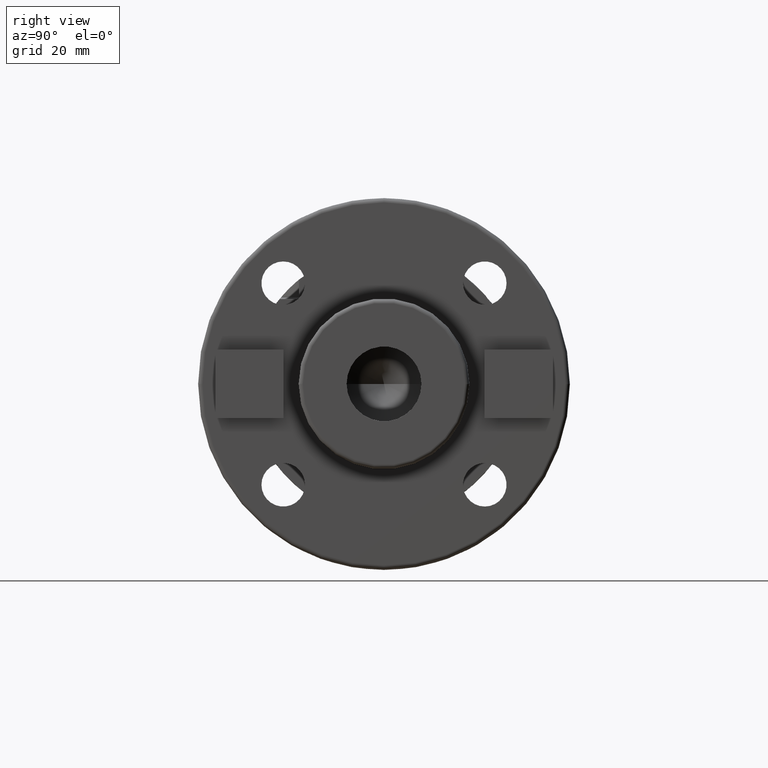
[diagram: clean part render]
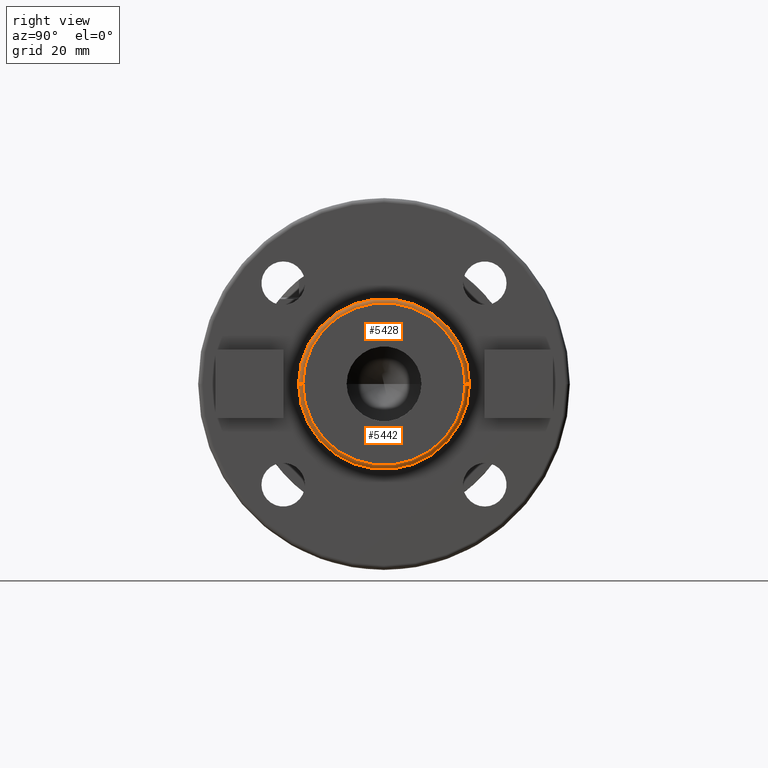
[diagram: same view with one multi-face feature highlighted, each face labeled with its STEP entity id]
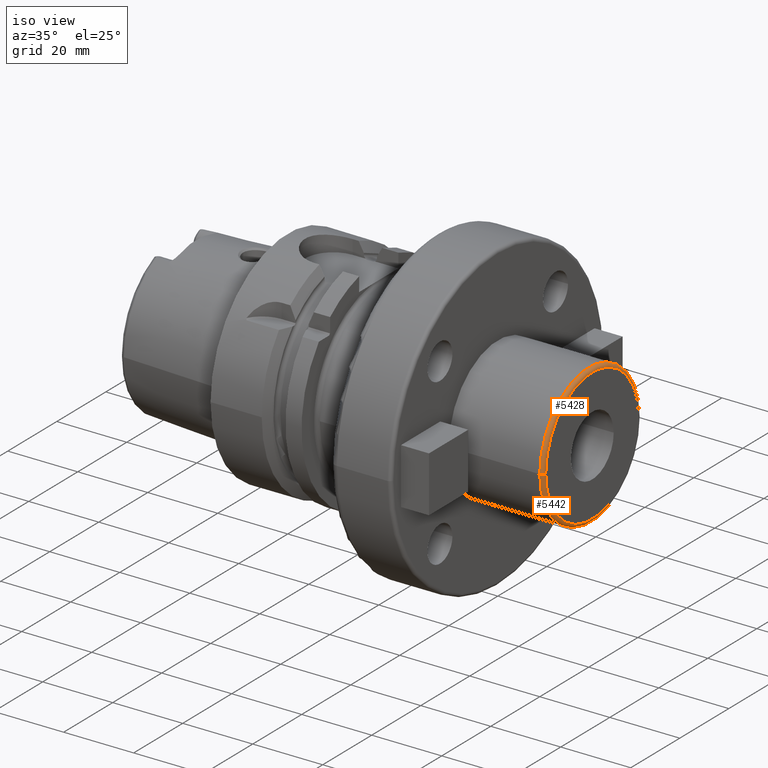
[diagram: same view with one multi-face feature highlighted, each face labeled with its STEP entity id]
A machine part, right view. The highlighted faces form ONE feature: a constant-radius fillet chain: 2 tangent blend faces with common blend radius 1 mm. The faces share edges in the B-rep.
A second angle (iso view) of the same feature is appended — it is thin or edge-on in the first view.
Their STEP definitions:
[1] entity #5428 (Torus):
#1701=CARTESIAN_POINT('',(8.6E1,0.E0,0.E0));
#1702=DIRECTION('',(-1.E0,0.E0,0.E0));
#1703=DIRECTION('',(0.E0,-1.E0,0.E0));
#1704=AXIS2_PLACEMENT_3D('',#1701,#1702,#1703);
#1706=CARTESIAN_POINT('',(8.6E1,-1.9E1,-4.343567172604E-12));
#1707=DIRECTION('',(0.E0,-2.286092322390E-13,1.E0));
#1708=DIRECTION('',(0.E0,-1.E0,-2.286092322390E-13));
#1709=AXIS2_PLACEMENT_3D('',#1706,#1707,#1708);
#1711=CARTESIAN_POINT('',(8.6E1,1.9E1,4.330855118972E-12));
#1712=DIRECTION('',(0.E0,2.279400626581E-13,-1.E0));
#1713=DIRECTION('',(0.E0,1.E0,2.279400626581E-13));
#1714=AXIS2_PLACEMENT_3D('',#1711,#1712,#1713);
#1734=CARTESIAN_POINT('',(8.7E1,0.E0,0.E0));
#1735=DIRECTION('',(-1.E0,0.E0,0.E0));
#1736=DIRECTION('',(0.E0,-1.E0,0.E0));
#1737=AXIS2_PLACEMENT_3D('',#1734,#1735,#1736);
#3387=CARTESIAN_POINT('',(8.6E1,2.E1,0.E0));
#3388=CARTESIAN_POINT('',(8.6E1,-2.E1,0.E0));
#3389=VERTEX_POINT('',#3387);
#3390=VERTEX_POINT('',#3388);
#3391=CARTESIAN_POINT('',(8.7E1,1.9E1,0.E0));
#3392=CARTESIAN_POINT('',(8.7E1,-1.9E1,0.E0));
#3393=VERTEX_POINT('',#3391);
#3394=VERTEX_POINT('',#3392);
#5414=CARTESIAN_POINT('',(8.6E1,0.E0,0.E0));
#5415=DIRECTION('',(1.E0,0.E0,0.E0));
#5416=DIRECTION('',(0.E0,-9.999931686909E-1,-3.696291583140E-3));
#5417=AXIS2_PLACEMENT_3D('',#5414,#5415,#5416);
#5418=TOROIDAL_SURFACE('',#5417,1.9E1,1.E0);
#5419=ORIENTED_EDGE('',*,*,#5404,.T.);
#5421=ORIENTED_EDGE('',*,*,#5420,.T.);
#5423=ORIENTED_EDGE('',*,*,#5422,.F.);
#5425=ORIENTED_EDGE('',*,*,#5424,.F.);
#5426=EDGE_LOOP('',(#5419,#5421,#5423,#5425));
#5427=FACE_OUTER_BOUND('',#5426,.F.);
#5428=ADVANCED_FACE('',(#5427),#5418,.T.);
#1705=CIRCLE('',#1704,2.E1);
#1710=CIRCLE('',#1709,1.E0);
#1715=CIRCLE('',#1714,1.E0);
#1738=CIRCLE('',#1737,1.9E1);
#5404=EDGE_CURVE('',#3390,#3389,#1705,.T.);
#5420=EDGE_CURVE('',#3389,#3393,#1715,.T.);
#5422=EDGE_CURVE('',#3394,#3393,#1738,.T.);
#5424=EDGE_CURVE('',#3390,#3394,#1710,.T.);
[2] entity #5442 (Torus):
#1706=CARTESIAN_POINT('',(8.6E1,-1.9E1,-4.343567172604E-12));
#1707=DIRECTION('',(0.E0,-2.286092322390E-13,1.E0));
#1708=DIRECTION('',(0.E0,-1.E0,-2.286092322390E-13));
#1709=AXIS2_PLACEMENT_3D('',#1706,#1707,#1708);
#1711=CARTESIAN_POINT('',(8.6E1,1.9E1,4.330855118972E-12));
#1712=DIRECTION('',(0.E0,2.279400626581E-13,-1.E0));
#1713=DIRECTION('',(0.E0,1.E0,2.279400626581E-13));
#1714=AXIS2_PLACEMENT_3D('',#1711,#1712,#1713);
#1716=CARTESIAN_POINT('',(8.6E1,0.E0,0.E0));
#1717=DIRECTION('',(-1.E0,0.E0,0.E0));
#1718=DIRECTION('',(0.E0,1.E0,0.E0));
#1719=AXIS2_PLACEMENT_3D('',#1716,#1717,#1718);
#1729=CARTESIAN_POINT('',(8.7E1,0.E0,0.E0));
#1730=DIRECTION('',(-1.E0,0.E0,0.E0));
#1731=DIRECTION('',(0.E0,1.E0,0.E0));
#1732=AXIS2_PLACEMENT_3D('',#1729,#1730,#1731);
#3387=CARTESIAN_POINT('',(8.6E1,2.E1,0.E0));
#3388=CARTESIAN_POINT('',(8.6E1,-2.E1,0.E0));
#3389=VERTEX_POINT('',#3387);
#3390=VERTEX_POINT('',#3388);
#3391=CARTESIAN_POINT('',(8.7E1,1.9E1,0.E0));
#3392=CARTESIAN_POINT('',(8.7E1,-1.9E1,0.E0));
#3393=VERTEX_POINT('',#3391);
#3394=VERTEX_POINT('',#3392);
#5429=CARTESIAN_POINT('',(8.6E1,0.E0,0.E0));
#5430=DIRECTION('',(1.E0,0.E0,0.E0));
#5431=DIRECTION('',(0.E0,9.999931686909E-1,3.696291583140E-3));
#5432=AXIS2_PLACEMENT_3D('',#5429,#5430,#5431);
#5433=TOROIDAL_SURFACE('',#5432,1.9E1,1.E0);
#5435=ORIENTED_EDGE('',*,*,#5434,.T.);
#5436=ORIENTED_EDGE('',*,*,#5424,.T.);
#5438=ORIENTED_EDGE('',*,*,#5437,.F.);
#5439=ORIENTED_EDGE('',*,*,#5420,.F.);
#5440=EDGE_LOOP('',(#5435,#5436,#5438,#5439));
#5441=FACE_OUTER_BOUND('',#5440,.F.);
#5442=ADVANCED_FACE('',(#5441),#5433,.T.);
#1710=CIRCLE('',#1709,1.E0);
#1715=CIRCLE('',#1714,1.E0);
#1720=CIRCLE('',#1719,2.E1);
#1733=CIRCLE('',#1732,1.9E1);
#5420=EDGE_CURVE('',#3389,#3393,#1715,.T.);
#5424=EDGE_CURVE('',#3390,#3394,#1710,.T.);
#5434=EDGE_CURVE('',#3389,#3390,#1720,.T.);
#5437=EDGE_CURVE('',#3393,#3394,#1733,.T.);